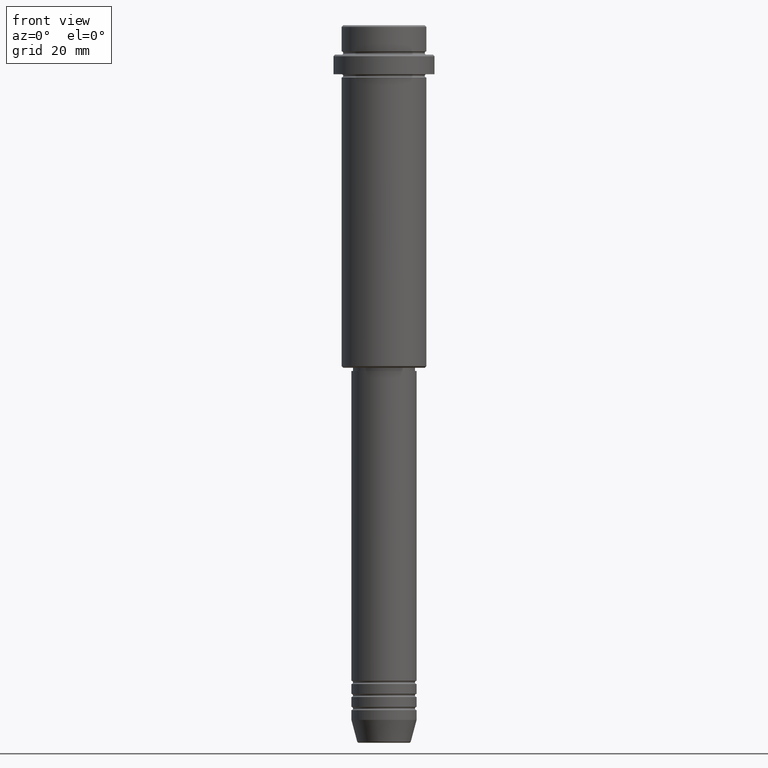
[diagram: clean part render]
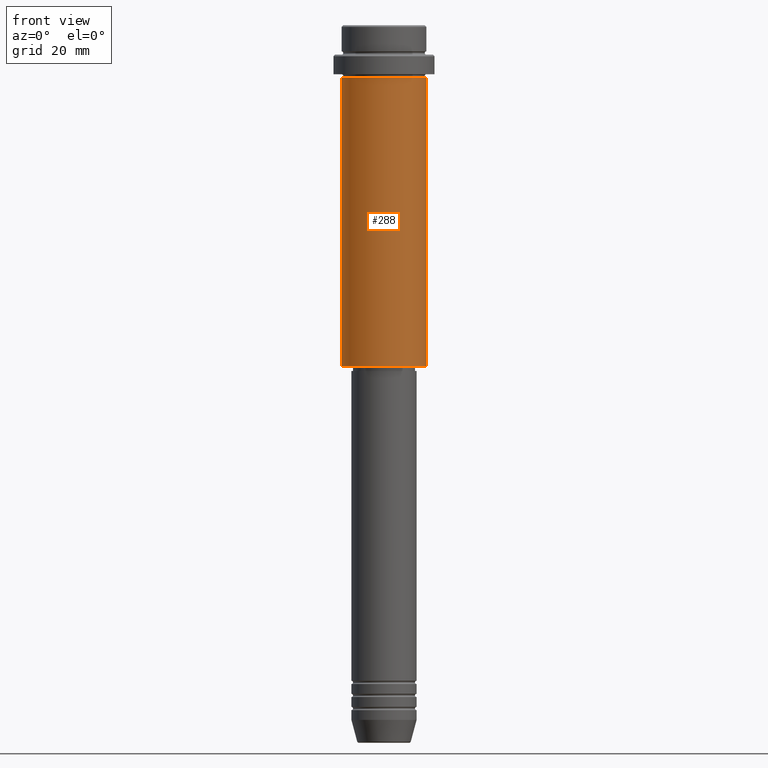
[diagram: same view with one face highlighted and labeled with its STEP entity id]
A machine part, front view. The second image highlights one B-rep face of the part: STEP entity #288.
In plain terms, the highlighted cylindrical surface (partial cylindrical patch) has radius 13 mm, axis along (-0, -0, 1).
Its self-contained STEP definition (entity closure, byte-faithful):
#7 = CARTESIAN_POINT ( 'NONE',  ( -13.00000000000000000, 1.592040838891559095E-15, -104.4999999999999574 ) ) ;
#11 = CYLINDRICAL_SURFACE ( 'NONE', #807, 13.00000000000000000 ) ;
#56 = LINE ( 'NONE', #397, #76 ) ;
#71 = EDGE_CURVE ( 'NONE', #1163, #996, #56, .T. ) ;
#76 = VECTOR ( 'NONE', #1266, 1000.000000000000000 ) ;
#78 = AXIS2_PLACEMENT_3D ( 'NONE', #967, #433, #184 ) ;
#184 = DIRECTION ( 'NONE',  ( -1.000000000000000000, 0.000000000000000000, 0.000000000000000000 ) ) ;
#288 = ADVANCED_FACE ( 'NONE', ( #785 ), #11, .T. ) ;
#362 = CIRCLE ( 'NONE', #603, 13.00000000000000000 ) ;
#397 = CARTESIAN_POINT ( 'NONE',  ( -13.00000000000000000, 1.592040838891559095E-15, 0.000000000000000000 ) ) ;
#398 = EDGE_CURVE ( 'NONE', #1037, #1313, #832, .T. ) ;
#433 = DIRECTION ( 'NONE',  ( -0.000000000000000000, -0.000000000000000000, 1.000000000000000000 ) ) ;
#465 = CARTESIAN_POINT ( 'NONE',  ( 0.000000000000000000, 0.000000000000000000, 0.000000000000000000 ) ) ;
#506 = EDGE_CURVE ( 'NONE', #996, #1313, #362, .T. ) ;
#509 = CIRCLE ( 'NONE', #78, 13.00000000000000000 ) ;
#541 = CARTESIAN_POINT ( 'NONE',  ( -13.00000000000000000, 1.592040838891559095E-15, -16.00000000000000000 ) ) ;
#589 = EDGE_CURVE ( 'NONE', #1163, #1037, #509, .T. ) ;
#603 = AXIS2_PLACEMENT_3D ( 'NONE', #739, #1281, #662 ) ;
#662 = DIRECTION ( 'NONE',  ( 1.000000000000000000, 0.000000000000000000, 0.000000000000000000 ) ) ;
#683 = DIRECTION ( 'NONE',  ( -0.000000000000000000, -0.000000000000000000, 1.000000000000000000 ) ) ;
#739 = CARTESIAN_POINT ( 'NONE',  ( 0.000000000000000000, 0.000000000000000000, -16.00000000000000000 ) ) ;
#785 = FACE_OUTER_BOUND ( 'NONE', #1329, .T. ) ;
#807 = AXIS2_PLACEMENT_3D ( 'NONE', #465, #683, #1111 ) ;
#827 = CARTESIAN_POINT ( 'NONE',  ( 13.00000000000000000, 0.000000000000000000, -16.00000000000000000 ) ) ;
#832 = LINE ( 'NONE', #934, #1334 ) ;
#848 = CARTESIAN_POINT ( 'NONE',  ( 13.00000000000000000, 0.000000000000000000, -104.4999999999999574 ) ) ;
#934 = CARTESIAN_POINT ( 'NONE',  ( 13.00000000000000000, 0.000000000000000000, 0.000000000000000000 ) ) ;
#967 = CARTESIAN_POINT ( 'NONE',  ( 0.000000000000000000, 0.000000000000000000, -104.4999999999999574 ) ) ;
#996 = VERTEX_POINT ( 'NONE', #541 ) ;
#1037 = VERTEX_POINT ( 'NONE', #848 ) ;
#1076 = ORIENTED_EDGE ( 'NONE', *, *, #589, .T. ) ;
#1111 = DIRECTION ( 'NONE',  ( 1.000000000000000000, 0.000000000000000000, 0.000000000000000000 ) ) ;
#1132 = ORIENTED_EDGE ( 'NONE', *, *, #398, .T. ) ;
#1143 = ORIENTED_EDGE ( 'NONE', *, *, #506, .F. ) ;
#1163 = VERTEX_POINT ( 'NONE', #7 ) ;
#1245 = DIRECTION ( 'NONE',  ( -0.000000000000000000, -0.000000000000000000, 1.000000000000000000 ) ) ;
#1266 = DIRECTION ( 'NONE',  ( -0.000000000000000000, -0.000000000000000000, 1.000000000000000000 ) ) ;
#1281 = DIRECTION ( 'NONE',  ( -0.000000000000000000, -0.000000000000000000, 1.000000000000000000 ) ) ;
#1313 = VERTEX_POINT ( 'NONE', #827 ) ;
#1329 = EDGE_LOOP ( 'NONE', ( #1353, #1076, #1132, #1143 ) ) ;
#1334 = VECTOR ( 'NONE', #1245, 1000.000000000000000 ) ;
#1353 = ORIENTED_EDGE ( 'NONE', *, *, #71, .F. ) ;